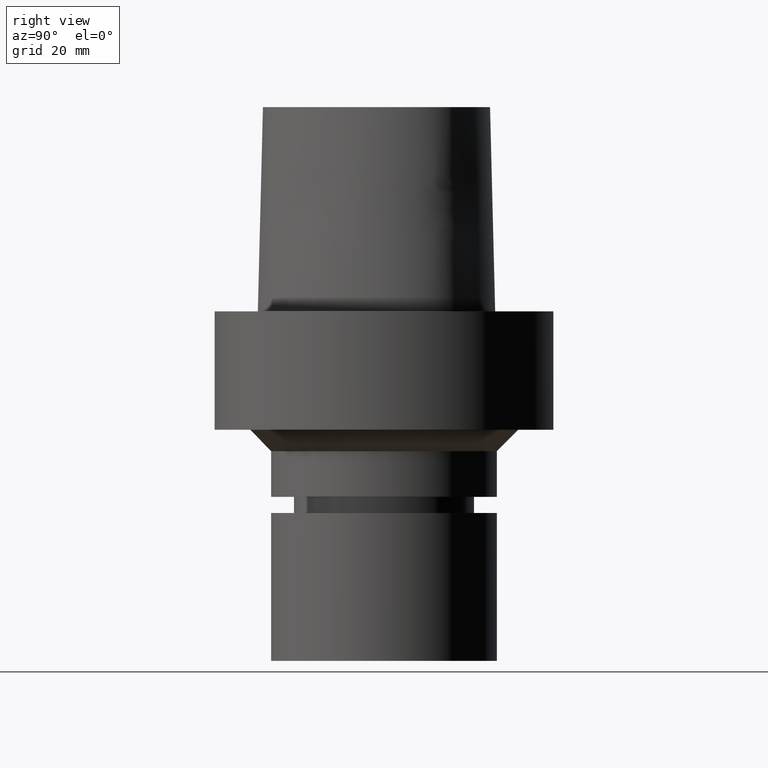
[diagram: clean part render]
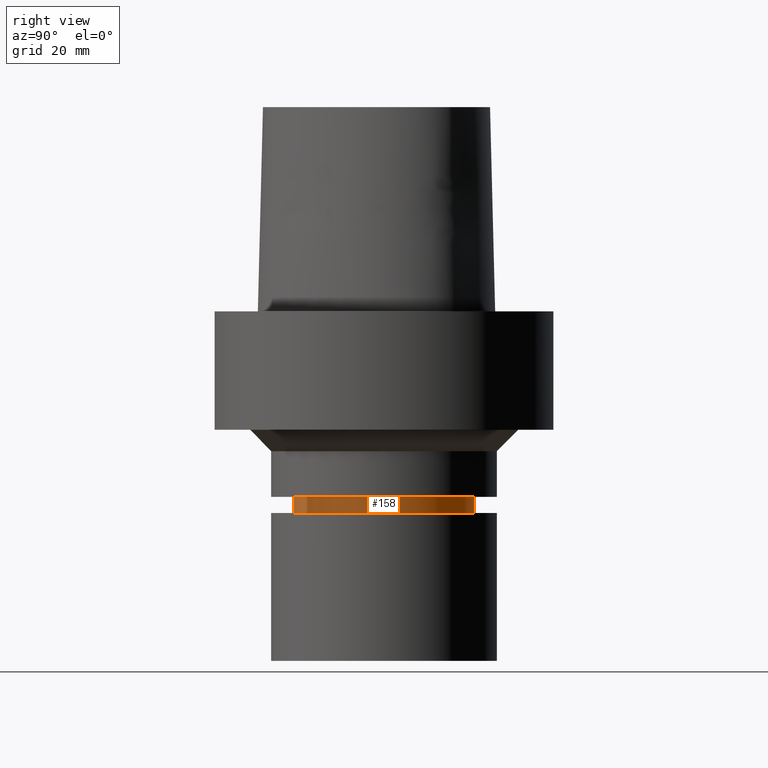
[diagram: same view with one face highlighted and labeled with its STEP entity id]
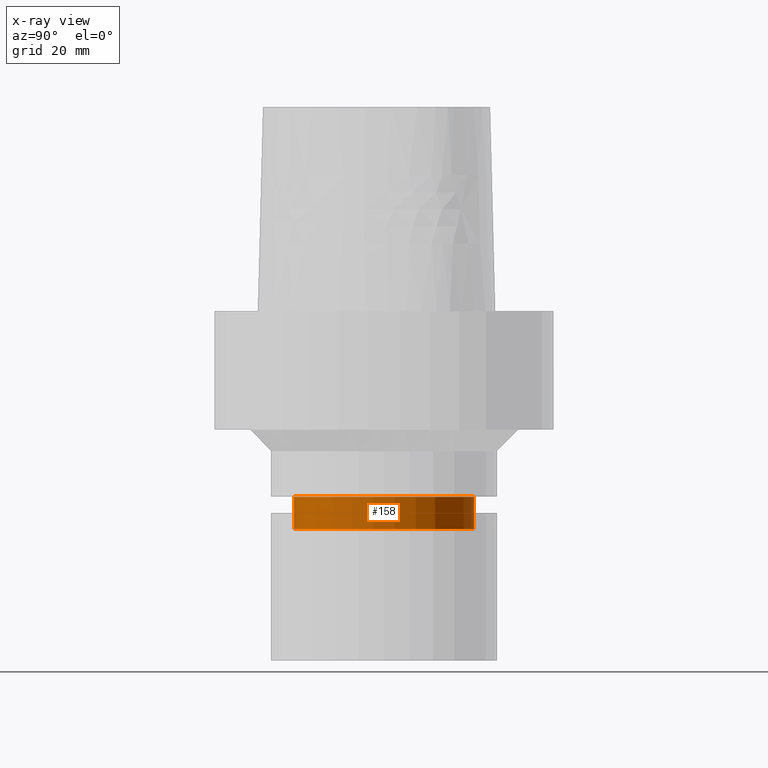
[diagram: x-ray of the same camera — body ghosted, the highlighted face saturated]
A machine part, right view. The second image highlights one B-rep face of the part: STEP entity #158.
The next image is the same camera in x-ray: the body ghosted, the highlighted face saturated — about 0% of this face is hidden behind the body in this view.
In plain terms, the highlighted cylindrical surface (bore or boss wall) has radius 16.75 mm, axis along (0, 0, -1).
Its self-contained STEP definition (entity closure, byte-faithful):
#78=EDGE_CURVE('Unnamed[1]',#200,#200,#201,.T.);
#97=EDGE_CURVE('Unnamed[1]',#226,#226,#227,.T.);
#158=ADVANCED_FACE('Unnamed[1]',(#313,#314),#315,.T.);
#200=VERTEX_POINT('',#360);
#201=CIRCLE('',#361,16.7500000000017);
#226=VERTEX_POINT('',#466);
#227=CIRCLE('',#467,16.7499999999907);
#313=FACE_BOUND('',#707,.T.);
#314=FACE_BOUND('',#708,.T.);
#315=CYLINDRICAL_SURFACE('',#709,16.7499999999962);
#360=CARTESIAN_POINT('',(2.47790899332347E-015,16.7500000000017,-40.4673248654009));
#361=AXIS2_PLACEMENT_3D('',#746,#747,#748);
#466=CARTESIAN_POINT('',(2.11251572852914E-015,16.7499999999907,-34.4999999999992));
#467=AXIS2_PLACEMENT_3D('',#768,#769,#770);
#707=EDGE_LOOP('',(#858));
#708=EDGE_LOOP('',(#859));
#709=AXIS2_PLACEMENT_3D('',#860,#861,#862);
#746=CARTESIAN_POINT('',(2.47790899332347E-015,4.95581798664693E-015,-40.4673248654009));
#747=DIRECTION('',(6.12323399573676E-017,1.22464679914735E-016,-1.0));
#748=DIRECTION('',(-1.23259516440783E-032,1.0,1.22464679914735E-016));
#768=CARTESIAN_POINT('',(2.11251572852914E-015,4.22503145705827E-015,-34.4999999999992));
#769=DIRECTION('',(6.12323399573677E-017,1.22464679914735E-016,-1.0));
#770=DIRECTION('',(-1.23259516440783E-032,1.0,1.22464679914735E-016));
#858=ORIENTED_EDGE('',*,*,#78,.F.);
#859=ORIENTED_EDGE('',*,*,#97,.T.);
#860=CARTESIAN_POINT('',(2.2952123609263E-015,4.5904247218526E-015,-37.4836624327001));
#861=DIRECTION('',(6.12323399573677E-017,1.22464679914735E-016,-1.0));
#862=DIRECTION('',(-1.23259516440783E-032,1.0,1.22464679914735E-016));